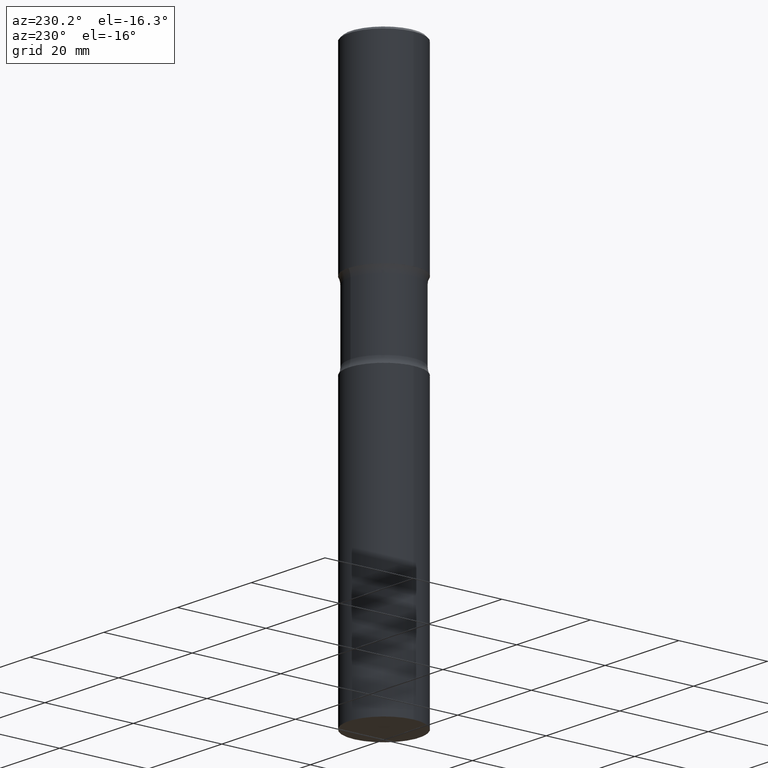
[diagram: clean part render]
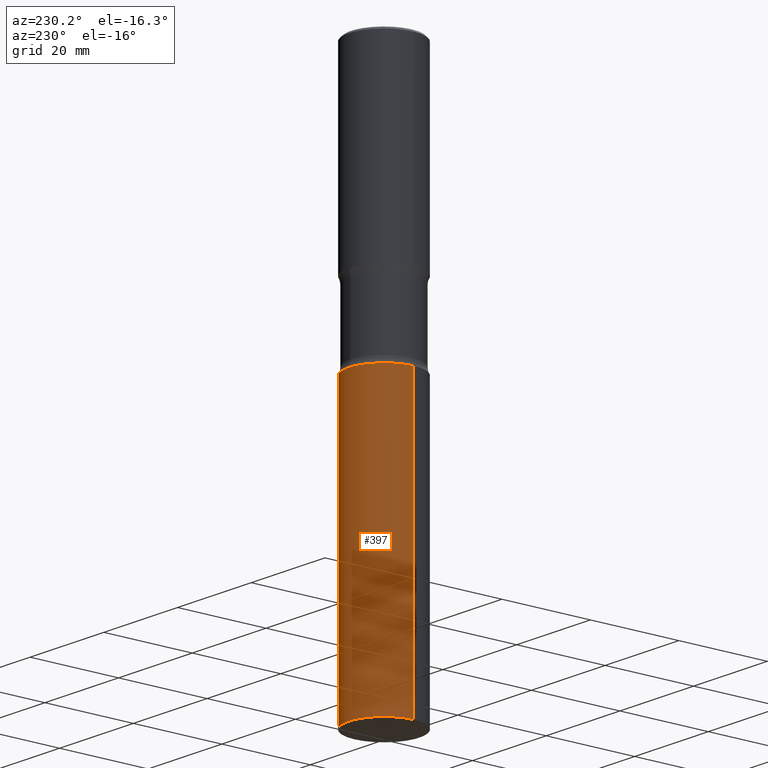
[diagram: same view with one face highlighted and labeled with its STEP entity id]
A machine part, auxiliary view. The second image highlights one B-rep face of the part: STEP entity #397.
In plain terms, the highlighted cylindrical surface (partial cylindrical patch) has radius 7.9997 mm, axis along (-0, 0, 1).
Its self-contained STEP definition (entity closure, byte-faithful):
#3 = CARTESIAN_POINT ( 'NONE',  ( 0.3149499999999998967, -2.199284095337288688E-15, 1.535751875536929289E-29 ) ) ;
#43 = CARTESIAN_POINT ( 'NONE',  ( -0.3149499999999999522, -1.054603000183079934E-14, -2.401600000000000179 ) ) ;
#50 = CYLINDRICAL_SURFACE ( 'NONE', #163, 0.3149499999999998967 ) ;
#72 = CARTESIAN_POINT ( 'NONE',  ( 1.203488563587891146E-28, -1.718262711284877024E-14, -4.921299999999999564 ) ) ;
#81 = DIRECTION ( 'NONE',  ( -2.445468806185136877E-29, 3.491481338843145188E-15, 1.000000000000000000 ) ) ;
#108 = EDGE_CURVE ( 'NONE', #210, #293, #264, .T. ) ;
#129 = LINE ( 'NONE', #3, #322 ) ;
#148 = EDGE_LOOP ( 'NONE', ( #281, #244, #170, #337 ) ) ;
#163 = AXIS2_PLACEMENT_3D ( 'NONE', #442, #429, #398 ) ;
#164 = CARTESIAN_POINT ( 'NONE',  ( -0.3149499999999998967, -1.054603000183079934E-14, -4.921299999999999564 ) ) ;
#169 = DIRECTION ( 'NONE',  ( -2.445468806185136877E-29, 3.491481338843145188E-15, 1.000000000000000000 ) ) ;
#170 = ORIENTED_EDGE ( 'NONE', *, *, #467, .F. ) ;
#205 = CARTESIAN_POINT ( 'NONE',  ( 0.3149499999999998967, -1.938191120818605853E-14, -4.921299999999999564 ) ) ;
#210 = VERTEX_POINT ( 'NONE', #205 ) ;
#221 = EDGE_CURVE ( 'NONE', #210, #298, #129, .T. ) ;
#225 = DIRECTION ( 'NONE',  ( -2.445468806185136597E-29, 3.491481338843145583E-15, 1.000000000000000000 ) ) ;
#240 = AXIS2_PLACEMENT_3D ( 'NONE', #72, #225, #418 ) ;
#243 = FACE_OUTER_BOUND ( 'NONE', #148, .T. ) ;
#244 = ORIENTED_EDGE ( 'NONE', *, *, #336, .T. ) ;
#245 = VECTOR ( 'NONE', #169, 39.37007874015748143 ) ;
#249 = VERTEX_POINT ( 'NONE', #43 ) ;
#261 = CARTESIAN_POINT ( 'NONE',  ( 5.873037884934224349E-29, -8.385141583365698841E-15, -2.401600000000000179 ) ) ;
#264 = CIRCLE ( 'NONE', #240, 0.3149499999999998967 ) ;
#281 = ORIENTED_EDGE ( 'NONE', *, *, #108, .T. ) ;
#293 = VERTEX_POINT ( 'NONE', #164 ) ;
#298 = VERTEX_POINT ( 'NONE', #311 ) ;
#311 = CARTESIAN_POINT ( 'NONE',  ( 0.3149499999999999522, -1.058442567870298871E-14, -2.401600000000000179 ) ) ;
#322 = VECTOR ( 'NONE', #81, 39.37007874015748143 ) ;
#336 = EDGE_CURVE ( 'NONE', #293, #249, #393, .T. ) ;
#337 = ORIENTED_EDGE ( 'NONE', *, *, #221, .F. ) ;
#349 = CIRCLE ( 'NONE', #465, 0.3149499999999999522 ) ;
#393 = LINE ( 'NONE', #475, #245 ) ;
#397 = ADVANCED_FACE ( 'NONE', ( #243 ), #50, .T. ) ;
#398 = DIRECTION ( 'NONE',  ( 1.000000000000000000, -6.982962677686265922E-15, 4.876176775795935232E-29 ) ) ;
#418 = DIRECTION ( 'NONE',  ( 1.000000000000000000, -6.982962677686259611E-15, 0.000000000000000000 ) ) ;
#419 = DIRECTION ( 'NONE',  ( -2.445468806185136597E-29, 3.491481338843145583E-15, 1.000000000000000000 ) ) ;
#429 = DIRECTION ( 'NONE',  ( -2.445468806185136597E-29, 3.491481338843145583E-15, 1.000000000000000000 ) ) ;
#442 = CARTESIAN_POINT ( 'NONE',  ( 0.000000000000000000, 0.000000000000000000, 0.000000000000000000 ) ) ;
#450 = DIRECTION ( 'NONE',  ( 1.000000000000000000, -6.982962677686268288E-15, 0.000000000000000000 ) ) ;
#465 = AXIS2_PLACEMENT_3D ( 'NONE', #261, #419, #450 ) ;
#467 = EDGE_CURVE ( 'NONE', #298, #249, #349, .T. ) ;
#475 = CARTESIAN_POINT ( 'NONE',  ( -0.3149499999999998967, 2.237854346276434801E-15, -1.549218606675782116E-29 ) ) ;